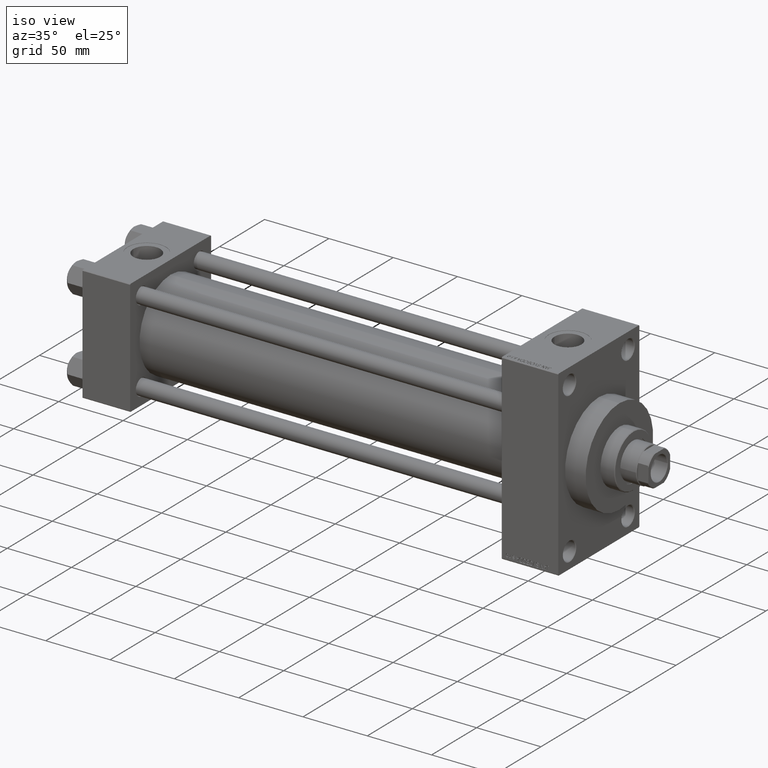
[diagram: clean part render]
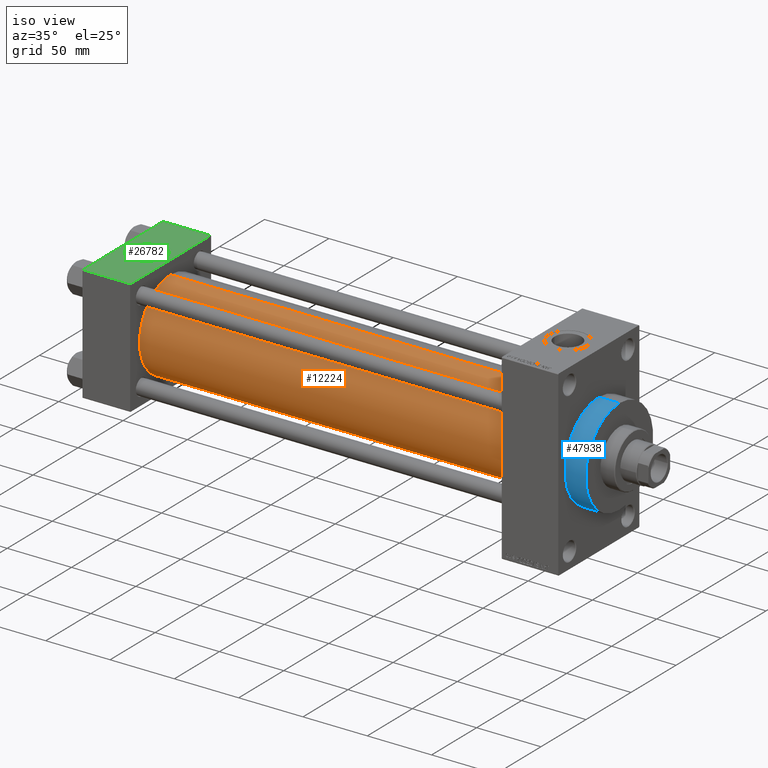
[diagram: same view with three faces highlighted in distinct colors, each labeled with its STEP entity id]
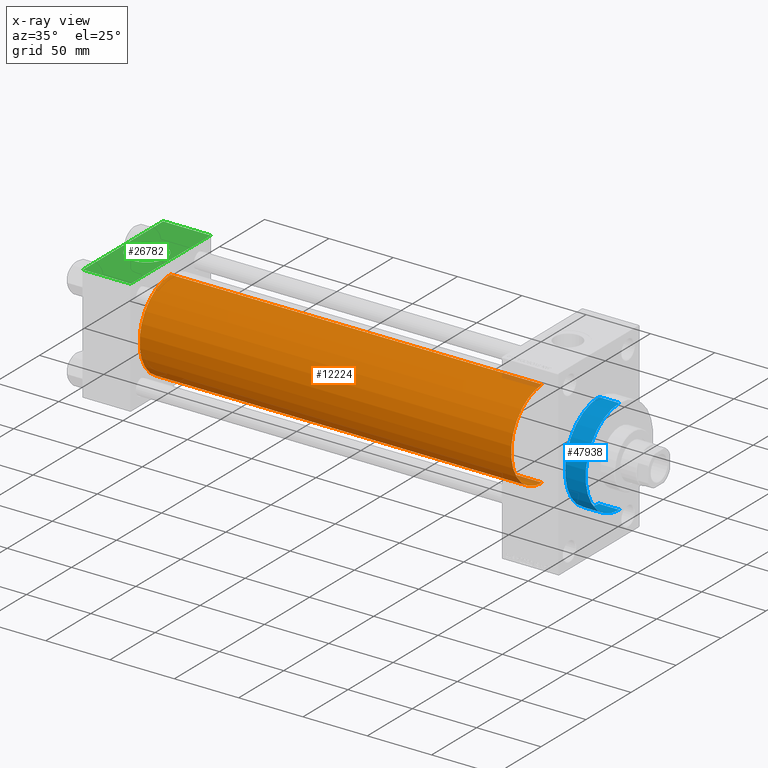
[diagram: x-ray of the same camera — body ghosted, the three highlighted faces saturated]
A machine part, iso view with three faces highlighted in distinct colors.
The next image is the same camera in x-ray (body ghosted, the three faces saturated) — at least one of them is partly hidden behind the body in this view.
Their STEP definitions:

[orange] entity #12224 — the highlighted cylindrical surface (partial cylindrical patch) has radius 34.5 mm, axis along (-1, -0, -0).
#2190 = CYLINDRICAL_SURFACE ( 'NONE', #20473, 34.50000000000000000 ) ;
#2539 = DIRECTION ( 'NONE',  ( 1.000000000000000000, -0.000000000000000000, 0.000000000000000000 ) ) ;
#4265 = LINE ( 'NONE', #42629, #31823 ) ;
#5071 = DIRECTION ( 'NONE',  ( -1.000000000000000000, -0.000000000000000000, -0.000000000000000000 ) ) ;
#6380 = CARTESIAN_POINT ( 'NONE',  ( 325.9999999999999432, -2.602085213965210642E-15, 0.000000000000000000 ) ) ;
#6543 = ORIENTED_EDGE ( 'NONE', *, *, #13914, .F. ) ;
#7115 = EDGE_LOOP ( 'NONE', ( #6543, #31692, #18666, #30925 ) ) ;
#7128 = VERTEX_POINT ( 'NONE', #37169 ) ;
#9003 = VERTEX_POINT ( 'NONE', #47829 ) ;
#9427 = DIRECTION ( 'NONE',  ( 0.000000000000000000, 0.000000000000000000, 1.000000000000000000 ) ) ;
#9668 = CARTESIAN_POINT ( 'NONE',  ( 325.9999999999999432, -2.602085213965210642E-15, 0.000000000000000000 ) ) ;
#9902 = FACE_OUTER_BOUND ( 'NONE', #7115, .T. ) ;
#12224 = ADVANCED_FACE ( 'NONE', ( #9902 ), #2190, .T. ) ;
#13345 = EDGE_CURVE ( 'NONE', #21963, #7128, #19666, .T. ) ;
#13659 = DIRECTION ( 'NONE',  ( -1.000000000000000000, -0.000000000000000000, -0.000000000000000000 ) ) ;
#13914 = EDGE_CURVE ( 'NONE', #48692, #7128, #43189, .T. ) ;
#15245 = DIRECTION ( 'NONE',  ( -1.000000000000000000, -0.000000000000000000, -0.000000000000000000 ) ) ;
#18666 = ORIENTED_EDGE ( 'NONE', *, *, #45957, .T. ) ;
#19666 = CIRCLE ( 'NONE', #47536, 34.50000000000000000 ) ;
#20473 = AXIS2_PLACEMENT_3D ( 'NONE', #9668, #13659, #9427 ) ;
#21963 = VERTEX_POINT ( 'NONE', #36567 ) ;
#23755 = CARTESIAN_POINT ( 'NONE',  ( 325.9999999999999432, 1.622946243093158675E-15, -34.50000000000000000 ) ) ;
#24579 = AXIS2_PLACEMENT_3D ( 'NONE', #6380, #35813, #36785 ) ;
#26177 = CIRCLE ( 'NONE', #24579, 34.50000000000000000 ) ;
#29452 = CARTESIAN_POINT ( 'NONE',  ( 325.9999999999999432, 1.622946243093158675E-15, -34.50000000000000000 ) ) ;
#30043 = VECTOR ( 'NONE', #5071, 1000.000000000000000 ) ;
#30925 = ORIENTED_EDGE ( 'NONE', *, *, #13345, .T. ) ;
#31692 = ORIENTED_EDGE ( 'NONE', *, *, #42569, .F. ) ;
#31823 = VECTOR ( 'NONE', #15245, 1000.000000000000000 ) ;
#34109 = CARTESIAN_POINT ( 'NONE',  ( 36.99999999999997868, -2.602085213965210642E-15, 0.000000000000000000 ) ) ;
#35813 = DIRECTION ( 'NONE',  ( 1.000000000000000000, 0.000000000000000000, 0.000000000000000000 ) ) ;
#36567 = CARTESIAN_POINT ( 'NONE',  ( 36.99999999999997868, -2.602085213965210642E-15, 34.50000000000000000 ) ) ;
#36682 = DIRECTION ( 'NONE',  ( 0.000000000000000000, 0.000000000000000000, 1.000000000000000000 ) ) ;
#36785 = DIRECTION ( 'NONE',  ( 0.000000000000000000, 0.000000000000000000, -1.000000000000000000 ) ) ;
#37169 = CARTESIAN_POINT ( 'NONE',  ( 36.99999999999997868, 1.622946243093158675E-15, -34.50000000000000000 ) ) ;
#42569 = EDGE_CURVE ( 'NONE', #9003, #48692, #26177, .T. ) ;
#42629 = CARTESIAN_POINT ( 'NONE',  ( 325.9999999999999432, -2.602085213965210642E-15, 34.50000000000000000 ) ) ;
#43189 = LINE ( 'NONE', #23755, #30043 ) ;
#45957 = EDGE_CURVE ( 'NONE', #9003, #21963, #4265, .T. ) ;
#47536 = AXIS2_PLACEMENT_3D ( 'NONE', #34109, #2539, #36682 ) ;
#47829 = CARTESIAN_POINT ( 'NONE',  ( 325.9999999999999432, -2.602085213965210642E-15, 34.50000000000000000 ) ) ;
#48692 = VERTEX_POINT ( 'NONE', #29452 ) ;

[blue] entity #47938 — the highlighted cylindrical surface (partial cylindrical patch) has radius 37.5 mm, axis along (-1, -0, -0).
#295 = CARTESIAN_POINT ( 'NONE',  ( 369.9999999999999432, 4.592425496802575156E-15, -37.50000000000000711 ) ) ;
#618 = ORIENTED_EDGE ( 'NONE', *, *, #18518, .F. ) ;
#3580 = CARTESIAN_POINT ( 'NONE',  ( 369.9999999999999432, 0.000000000000000000, 0.000000000000000000 ) ) ;
#3617 = LINE ( 'NONE', #41498, #45236 ) ;
#3842 = VERTEX_POINT ( 'NONE', #43515 ) ;
#4499 = FACE_OUTER_BOUND ( 'NONE', #49238, .T. ) ;
#5443 = CIRCLE ( 'NONE', #27748, 37.50000000000000711 ) ;
#9141 = ORIENTED_EDGE ( 'NONE', *, *, #13225, .T. ) ;
#11836 = DIRECTION ( 'NONE',  ( -1.000000000000000000, -0.000000000000000000, -0.000000000000000000 ) ) ;
#12634 = VECTOR ( 'NONE', #20015, 1000.000000000000000 ) ;
#12963 = DIRECTION ( 'NONE',  ( -1.000000000000000000, -0.000000000000000000, -0.000000000000000000 ) ) ;
#13225 = EDGE_CURVE ( 'NONE', #29560, #33069, #35604, .T. ) ;
#14115 = AXIS2_PLACEMENT_3D ( 'NONE', #3580, #19279, #33971 ) ;
#16426 = EDGE_CURVE ( 'NONE', #48243, #33069, #42187, .T. ) ;
#18518 = EDGE_CURVE ( 'NONE', #3842, #48243, #5443, .T. ) ;
#18922 = EDGE_CURVE ( 'NONE', #3842, #29560, #3617, .T. ) ;
#19279 = DIRECTION ( 'NONE',  ( 1.000000000000000000, 0.000000000000000000, 0.000000000000000000 ) ) ;
#20015 = DIRECTION ( 'NONE',  ( -1.000000000000000000, -0.000000000000000000, -0.000000000000000000 ) ) ;
#24312 = DIRECTION ( 'NONE',  ( 1.000000000000000000, 0.000000000000000000, 0.000000000000000000 ) ) ;
#27420 = CARTESIAN_POINT ( 'NONE',  ( 385.9999999999999432, 0.000000000000000000, 0.000000000000000000 ) ) ;
#27484 = ORIENTED_EDGE ( 'NONE', *, *, #16426, .F. ) ;
#27748 = AXIS2_PLACEMENT_3D ( 'NONE', #27816, #24312, #36022 ) ;
#27816 = CARTESIAN_POINT ( 'NONE',  ( 385.9999999999999432, 0.000000000000000000, 0.000000000000000000 ) ) ;
#29507 = AXIS2_PLACEMENT_3D ( 'NONE', #27420, #12963, #38885 ) ;
#29560 = VERTEX_POINT ( 'NONE', #47800 ) ;
#33069 = VERTEX_POINT ( 'NONE', #295 ) ;
#33971 = DIRECTION ( 'NONE',  ( 0.000000000000000000, 0.000000000000000000, -1.000000000000000000 ) ) ;
#35604 = CIRCLE ( 'NONE', #14115, 37.50000000000000711 ) ;
#36022 = DIRECTION ( 'NONE',  ( 0.000000000000000000, 0.000000000000000000, -1.000000000000000000 ) ) ;
#38885 = DIRECTION ( 'NONE',  ( 0.000000000000000000, 0.000000000000000000, 1.000000000000000000 ) ) ;
#39730 = ORIENTED_EDGE ( 'NONE', *, *, #18922, .T. ) ;
#41498 = CARTESIAN_POINT ( 'NONE',  ( 385.9999999999999432, 0.000000000000000000, 37.50000000000000711 ) ) ;
#42187 = LINE ( 'NONE', #46928, #12634 ) ;
#43304 = CARTESIAN_POINT ( 'NONE',  ( 385.9999999999999432, 4.592425496802575156E-15, -37.50000000000000711 ) ) ;
#43515 = CARTESIAN_POINT ( 'NONE',  ( 385.9999999999999432, 0.000000000000000000, 37.50000000000000711 ) ) ;
#45236 = VECTOR ( 'NONE', #11836, 1000.000000000000000 ) ;
#46368 = CYLINDRICAL_SURFACE ( 'NONE', #29507, 37.50000000000000711 ) ;
#46928 = CARTESIAN_POINT ( 'NONE',  ( 385.9999999999999432, 4.592425496802575156E-15, -37.50000000000000711 ) ) ;
#47800 = CARTESIAN_POINT ( 'NONE',  ( 369.9999999999999432, 0.000000000000000000, 37.50000000000000711 ) ) ;
#47938 = ADVANCED_FACE ( 'NONE', ( #4499 ), #46368, .T. ) ;
#48243 = VERTEX_POINT ( 'NONE', #43304 ) ;
#49238 = EDGE_LOOP ( 'NONE', ( #27484, #618, #39730, #9141 ) ) ;

[green] entity #26782 — the highlighted planar face has unit normal (0, 0, -1).
#2415 = DIRECTION ( 'NONE',  ( 0.000000000000000000, 0.000000000000000000, 1.000000000000000000 ) ) ;
#2779 = CARTESIAN_POINT ( 'NONE',  ( 0.000000000000000000, 44.49999999999998579, 45.00000000000001421 ) ) ;
#3140 = CARTESIAN_POINT ( 'NONE',  ( 33.50000000000000000, -8.673617379884038628E-15, 45.00000000000000711 ) ) ;
#3808 = LINE ( 'NONE', #22499, #26913 ) ;
#5037 = CARTESIAN_POINT ( 'NONE',  ( 0.000000000000000000, -44.49999999999995737, 45.00000000000000000 ) ) ;
#5088 = DIRECTION ( 'NONE',  ( 0.000000000000000000, 0.000000000000000000, 1.000000000000000000 ) ) ;
#5622 = ORIENTED_EDGE ( 'NONE', *, *, #9566, .T. ) ;
#5699 = VERTEX_POINT ( 'NONE', #3140 ) ;
#6003 = DIRECTION ( 'NONE',  ( 0.000000000000000000, 1.000000000000000000, 1.541976423090495633E-16 ) ) ;
#6115 = CIRCLE ( 'NONE', #37920, 15.00000000000000355 ) ;
#6870 = ORIENTED_EDGE ( 'NONE', *, *, #48364, .F. ) ;
#7284 = AXIS2_PLACEMENT_3D ( 'NONE', #17142, #2415, #40549 ) ;
#7806 = CARTESIAN_POINT ( 'NONE',  ( 37.00000000000000000, -44.49999999999998579, 45.00000000000000000 ) ) ;
#8221 = EDGE_LOOP ( 'NONE', ( #5622, #37329, #11938, #44145 ) ) ;
#8425 = VECTOR ( 'NONE', #22067, 1000.000000000000000 ) ;
#8623 = VERTEX_POINT ( 'NONE', #5037 ) ;
#9566 = EDGE_CURVE ( 'NONE', #26067, #8623, #30520, .T. ) ;
#10400 = VECTOR ( 'NONE', #19276, 1000.000000000000000 ) ;
#11938 = ORIENTED_EDGE ( 'NONE', *, *, #41694, .F. ) ;
#15684 = CARTESIAN_POINT ( 'NONE',  ( 37.00000000000000000, 44.49999999999998579, 45.00000000000001421 ) ) ;
#15819 = VECTOR ( 'NONE', #40165, 1000.000000000000000 ) ;
#17142 = CARTESIAN_POINT ( 'NONE',  ( 18.50000000000000000, -8.673617379884038628E-15, 45.00000000000000711 ) ) ;
#17162 = CARTESIAN_POINT ( 'NONE',  ( 0.000000000000000000, 44.49999999999998579, 45.00000000000001421 ) ) ;
#19259 = DIRECTION ( 'NONE',  ( 0.000000000000000000, -1.000000000000000000, -1.541976423090495387E-16 ) ) ;
#19276 = DIRECTION ( 'NONE',  ( 1.000000000000000000, 0.000000000000000000, 0.000000000000000000 ) ) ;
#20047 = CARTESIAN_POINT ( 'NONE',  ( 18.50000000000000000, -8.673617379884038628E-15, 45.00000000000000711 ) ) ;
#20231 = EDGE_CURVE ( 'NONE', #30237, #26067, #21717, .T. ) ;
#21624 = CIRCLE ( 'NONE', #7284, 15.00000000000000355 ) ;
#21678 = ORIENTED_EDGE ( 'NONE', *, *, #33764, .F. ) ;
#21717 = LINE ( 'NONE', #2779, #15819 ) ;
#22067 = DIRECTION ( 'NONE',  ( 0.000000000000000000, -1.000000000000000000, -1.541976423090495387E-16 ) ) ;
#22499 = CARTESIAN_POINT ( 'NONE',  ( 37.00000000000000000, 44.99999999999998579, 45.00000000000001421 ) ) ;
#24942 = FACE_BOUND ( 'NONE', #30583, .T. ) ;
#25434 = FACE_OUTER_BOUND ( 'NONE', #8221, .T. ) ;
#26067 = VERTEX_POINT ( 'NONE', #17162 ) ;
#26782 = ADVANCED_FACE ( 'NONE', ( #24942, #25434 ), #47641, .F. ) ;
#26913 = VECTOR ( 'NONE', #19259, 1000.000000000000000 ) ;
#29728 = AXIS2_PLACEMENT_3D ( 'NONE', #36409, #37137, #6003 ) ;
#30237 = VERTEX_POINT ( 'NONE', #15684 ) ;
#30520 = LINE ( 'NONE', #44745, #8425 ) ;
#30583 = EDGE_LOOP ( 'NONE', ( #6870, #21678 ) ) ;
#33764 = EDGE_CURVE ( 'NONE', #40418, #5699, #6115, .T. ) ;
#34567 = CARTESIAN_POINT ( 'NONE',  ( 3.499999999999997780, -6.836647181163008250E-15, 45.00000000000000711 ) ) ;
#35226 = DIRECTION ( 'NONE',  ( 1.000000000000000000, 0.000000000000000000, 0.000000000000000000 ) ) ;
#36409 = CARTESIAN_POINT ( 'NONE',  ( 37.00000000000000000, 44.99999999999998579, 45.00000000000001421 ) ) ;
#36869 = VERTEX_POINT ( 'NONE', #38792 ) ;
#37137 = DIRECTION ( 'NONE',  ( 0.000000000000000000, 1.541976423090495633E-16, -1.000000000000000000 ) ) ;
#37329 = ORIENTED_EDGE ( 'NONE', *, *, #47549, .T. ) ;
#37717 = LINE ( 'NONE', #7806, #10400 ) ;
#37920 = AXIS2_PLACEMENT_3D ( 'NONE', #20047, #5088, #35226 ) ;
#38792 = CARTESIAN_POINT ( 'NONE',  ( 37.00000000000000000, -44.49999999999995737, 45.00000000000000000 ) ) ;
#40165 = DIRECTION ( 'NONE',  ( -1.000000000000000000, 0.000000000000000000, 0.000000000000000000 ) ) ;
#40418 = VERTEX_POINT ( 'NONE', #34567 ) ;
#40549 = DIRECTION ( 'NONE',  ( 1.000000000000000000, 0.000000000000000000, 0.000000000000000000 ) ) ;
#41694 = EDGE_CURVE ( 'NONE', #30237, #36869, #3808, .T. ) ;
#44145 = ORIENTED_EDGE ( 'NONE', *, *, #20231, .T. ) ;
#44745 = CARTESIAN_POINT ( 'NONE',  ( 0.000000000000000000, 44.99999999999998579, 45.00000000000001421 ) ) ;
#47549 = EDGE_CURVE ( 'NONE', #8623, #36869, #37717, .T. ) ;
#47641 = PLANE ( 'NONE',  #29728 ) ;
#48364 = EDGE_CURVE ( 'NONE', #5699, #40418, #21624, .T. ) ;